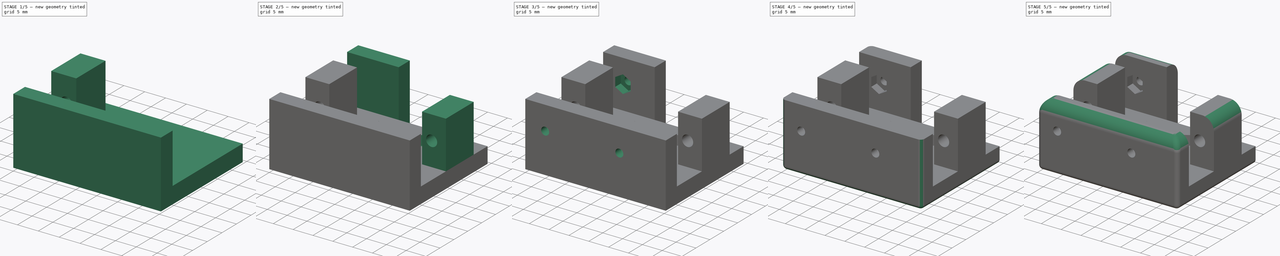
[diagram: build sequence overview — one tinted view per stage of 5, left to right]
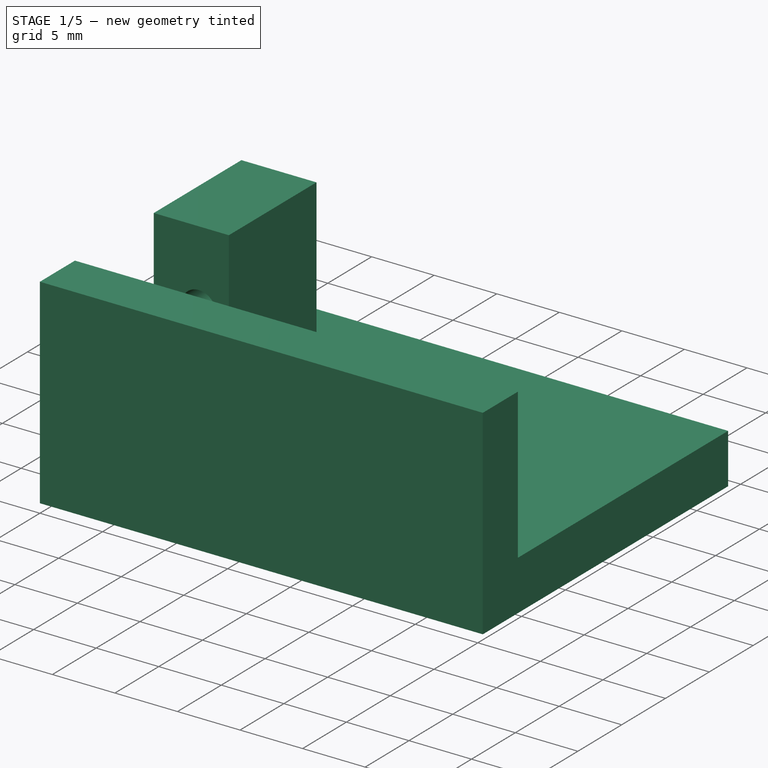
[diagram: stage 1 of 5 — iso view after this stage's code; geometry added in this stage tinted green]
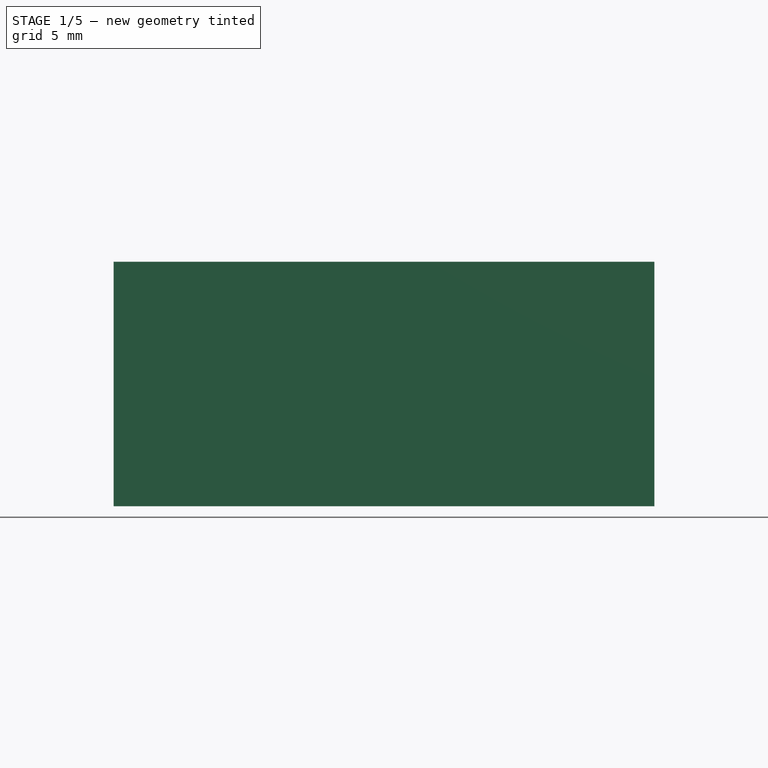
[diagram: stage 1 of 5 — front view after this stage's code; geometry added in this stage tinted green]
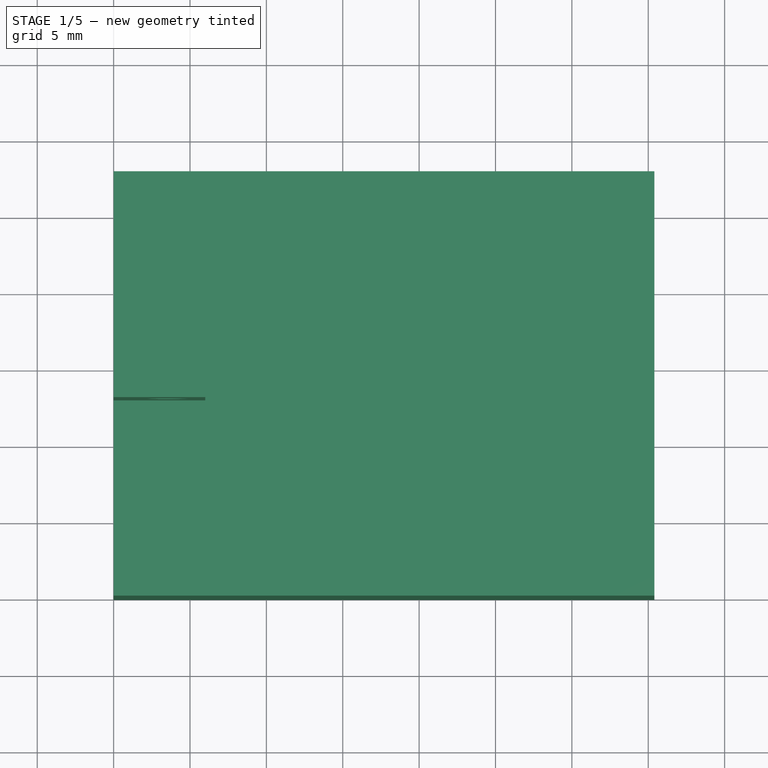
[diagram: stage 1 of 5 — top view after this stage's code; geometry added in this stage tinted green]
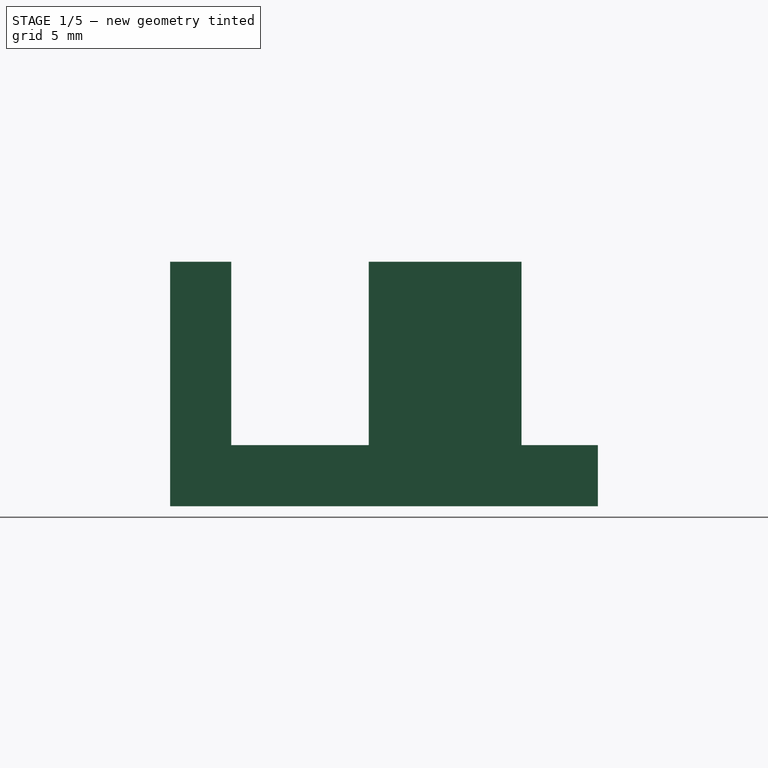
[diagram: stage 1 of 5 — right view after this stage's code; geometry added in this stage tinted green]
FCSTD DOCUMENT  (FreeCAD 0.20R29177 +426 (Git))
Label: headSmallServoHolder
License: All rights reserved
LicenseURL: http://en.wikipedia.org/wiki/All_rights_reserved
objects: Sketcher::SketchObject×13, PartDesign::Pocket×8, PartDesign::Fillet×8, PartDesign::Pad×5, Spreadsheet::Sheet×1, PartDesign::Body×1
note: 56 computed .brp shape members not serialized (recipe doc carries the construction recipe); baked Part::Feature solids carry a one-line shape summary decoded from their .brp

FEATURE [Spreadsheet::Sheet] Spreadsheet
  cells = A1=tolerance; B1(tolerance)=0.2; A2=thickness; B2(thickness)=4; A3=servo_outer_x; B3(servo_x)=35.4; A4=servo_inner_x; B4(servo_inner_x)=40.2; A5=servo_y; B5(servo_y)=24; D5=sketch 41,5 real 38,0; A6=servo_z; B6(servo_z)=12; A7=foothold_y_len; B7(foothold_y_len)=10; A8=foothold_y_pos; B8(foothold_y_pos)=23; D8=sketch 27.8 real 25,1; A9=foothold_z_len; B9(foothold_z_len)==B6 + B2; C9=c; A10=foothold_x_len; B10(foothold_x_len)=6; C10=c; A11=upper_hole_z_pos; B11(upper_hole_z_pos)==15 + B2; C11=c; A12=lower_hole_z_pos; B12(lower_hole_z_pos)==6 + B2; C12=c; A13=hole_x_pos; B13(hole_x_pos)=2.4; A14=hole_diameter; B14(hole_diameter)=2.8; A15=axis_x_pos; B15(axis_x_pos)=37.25; A16=axis_z_pos; B16(axis_z_pos)==10 + B2; A17=axis_y_pos; B17(axis_y_pos)=0; A18=axis_diameter; B18(axis_diameter)=5.9; A19=axis_length; B19(axis_length)=5; A20=plate_y_dim; B20(plate_y_dim)==B5 + B2; C20=c
FEATURE [Sketcher::SketchObject] Sketch
  FullyConstrained = true
  MapMode = 5
  Support = -> [XY_Plane]
  expr: Constraints[10] = Spreadsheet.servo_y
  expr: Constraints[11] = Spreadsheet.thickness
  expr: Constraints[9] = Spreadsheet.servo_x
  sketch-geometry (4):
    g0: LineSegment StartX=0 StartY=28 StartZ=0 EndX=35.4 EndY=28 EndZ=0
    g1: LineSegment StartX=35.4 StartY=28 StartZ=0 EndX=35.4 EndY=4 EndZ=0
    g2: LineSegment StartX=35.4 StartY=4 StartZ=0 EndX=0 EndY=4 EndZ=0
    g3: LineSegment StartX=0 StartY=4 StartZ=0 EndX=0 EndY=28 EndZ=0
  constraints (12):
    c: Coincident(g0,g1)
    c: Coincident(g1,g2)
    c: Coincident(g2,g3)
    c: Coincident(g3,g0)
    c: Horizontal(g0)
    c: Horizontal(g2)
    c: Vertical(g1)
    c: Vertical(g3)
    c: PointOnObject(g0,g-2)
    c: DistanceX(g2,g2) = 35.4
    c: DistanceY(g3,g3) = 24
    c: DistanceY(g-1,g2) = 4
FEATURE [PartDesign::Pad] Pad  label="plate"
  Direction = (0,0,1)
  Length = 4
  Length2 = 10
  Profile = -> Sketch
  ReferenceAxis = -> Sketch [N_Axis]
  Type = 0
  expr: Length = Spreadsheet.thickness
FEATURE [Sketcher::SketchObject] Sketch001
  ExternalGeometry = -> [Pad]
  FullyConstrained = true
  MapMode = 5
  Support = -> [XY_Plane]
  expr: Constraints[7] = 4
  sketch-geometry (4):
    g0: LineSegment StartX=0 StartY=0 StartZ=0 EndX=35.4 EndY=0 EndZ=0
    g1: LineSegment StartX=35.4 StartY=0 StartZ=0 EndX=35.4 EndY=4 EndZ=0
    g2: LineSegment StartX=35.4 StartY=4 StartZ=0 EndX=0 EndY=4 EndZ=0
    g3: LineSegment StartX=0 StartY=4 StartZ=0 EndX=0 EndY=0 EndZ=0
  constraints (10):
    c: Coincident(g0,g1)
    c: Coincident(g1,g2)
    c: Coincident(g2,g3)
    c: Coincident(g3,g0)
    c: Horizontal(g0)
    c: Vertical(g1)
    c: Vertical(g3)
    c: DistanceY(g1,g1) = 4
    c: Coincident(g1,g-3)
    c: Coincident(g2,g-3)
FEATURE [PartDesign::Pad] Pad001  label="back"
  BaseFeature = -> Pad
  Direction = (0,0,1)
  Length = 16
  Length2 = 10
  Profile = -> Sketch001
  ReferenceAxis = -> Sketch001 [N_Axis]
  Type = 0
  expr: Length = Spreadsheet.servo_z + Spreadsheet.thickness
FEATURE [Sketcher::SketchObject] Sketch003
  FullyConstrained = true
  MapMode = 5
  Support = -> [XY_Plane]
  expr: Constraints[10] = Spreadsheet.foothold_y_len
  expr: Constraints[11] = Spreadsheet.foothold_x_len
  expr: Constraints[9] = Spreadsheet.foothold_y_pos
  sketch-geometry (4):
    g0: LineSegment StartX=0 StartY=23 StartZ=0 EndX=6 EndY=23 EndZ=0
    g1: LineSegment StartX=6 StartY=23 StartZ=0 EndX=6 EndY=13 EndZ=0
    g2: LineSegment StartX=6 StartY=13 StartZ=0 EndX=0 EndY=13 EndZ=0
    g3: LineSegment StartX=0 StartY=13 StartZ=0 EndX=0 EndY=23 EndZ=0
  constraints (12):
    c: Coincident(g0,g1)
    c: Coincident(g1,g2)
    c: Coincident(g2,g3)
    c: Coincident(g3,g0)
    c: Horizontal(g0)
    c: Horizontal(g2)
    c: Vertical(g1)
    c: Vertical(g3)
    c: PointOnObject(g0,g-2)
    c: DistanceY(g-1,g0) = 23
    c: DistanceY(g2,g0) = 10
    c: DistanceX(g2,g1) = 6
FEATURE [PartDesign::Pad] Pad003  label="foothold_left"
  BaseFeature = -> Pad001
  Direction = (0,0,1)
  Length = 16
  Length2 = 10
  Profile = -> Sketch003
  ReferenceAxis = -> Sketch003 [N_Axis]
  Type = 0
  expr: Length = Spreadsheet.foothold_z_len
FEATURE [Sketcher::SketchObject] Sketch004
  ExternalGeometry = -> [Pad003]
  FullyConstrained = true
  MapMode = 5
  Placement = pos=(0,23,0) rot=(0,0.707107,0.707107;3.14159rad)
  Support = -> [Pad003]
  expr: Constraints[0] = Spreadsheet.lower_hole_z_pos
  expr: Constraints[1] = Spreadsheet.hole_diameter
  expr: Constraints[2] = Spreadsheet.hole_x_pos
  sketch-geometry (1):
    g0: Circle CenterX=-3.6 CenterY=10 CenterZ=0 NormalX=0 NormalY=0 NormalZ=1 AngleXU=0 Radius=1.4
  constraints (3):
    c: DistanceY(g-1,g0) = 10
    c: Diameter(g0) = 2.8
    c: DistanceX(g-3,g0) = 2.4
FEATURE [PartDesign::Pocket] Pocket  label="foothold_left_holes"
  BaseFeature = -> Pad003
  Direction = (0,-1,2e-16)
  Length = 10
  Length2 = 5
  Profile = -> Sketch004
  ReferenceAxis = -> Sketch004 [N_Axis]
  Type = 0
  expr: Length = Spreadsheet.foothold_y_len
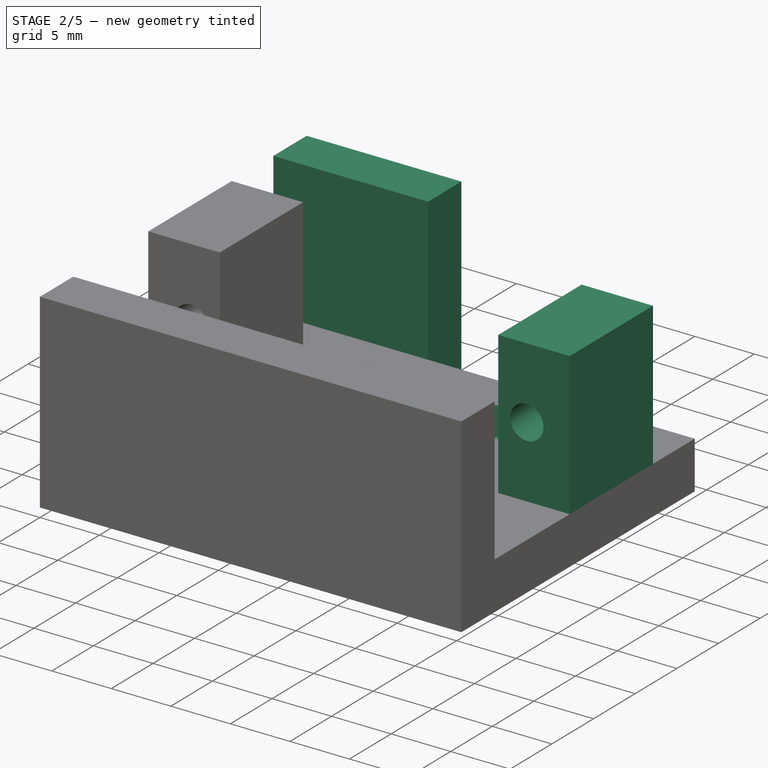
[diagram: stage 2 of 5 — iso view after this stage's code; geometry added in this stage tinted green]
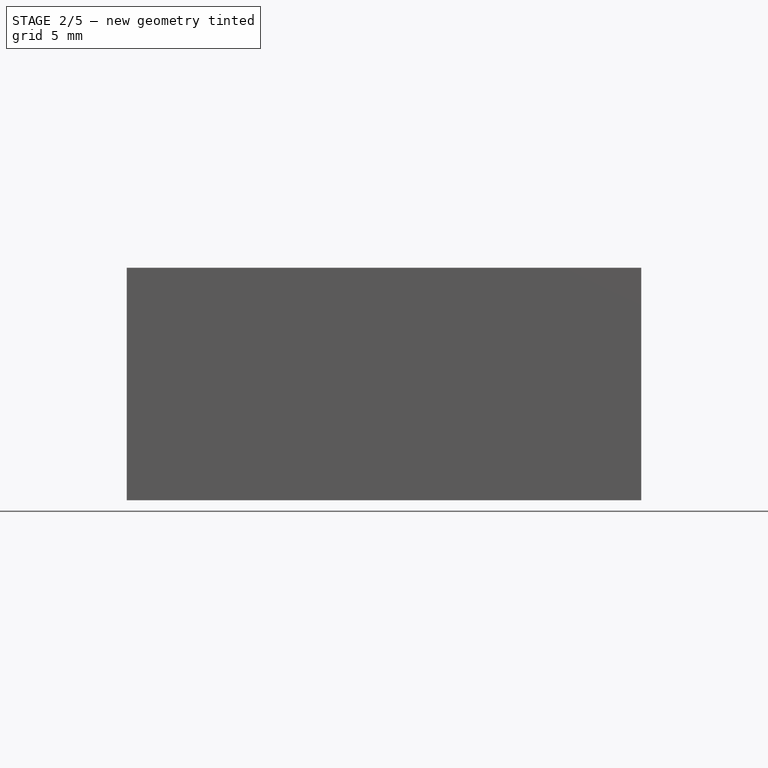
[diagram: stage 2 of 5 — front view after this stage's code; geometry added in this stage tinted green]
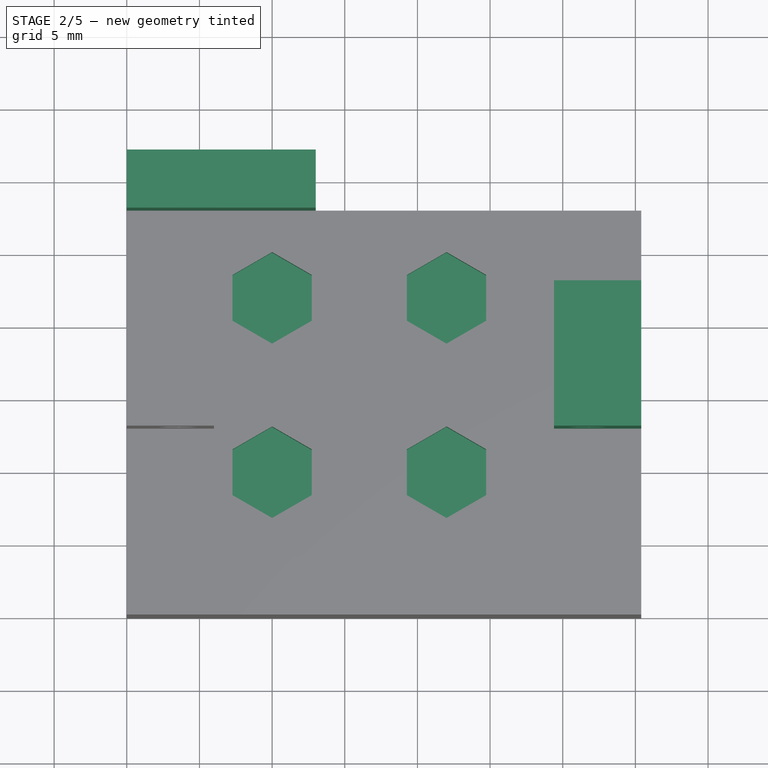
[diagram: stage 2 of 5 — top view after this stage's code; geometry added in this stage tinted green]
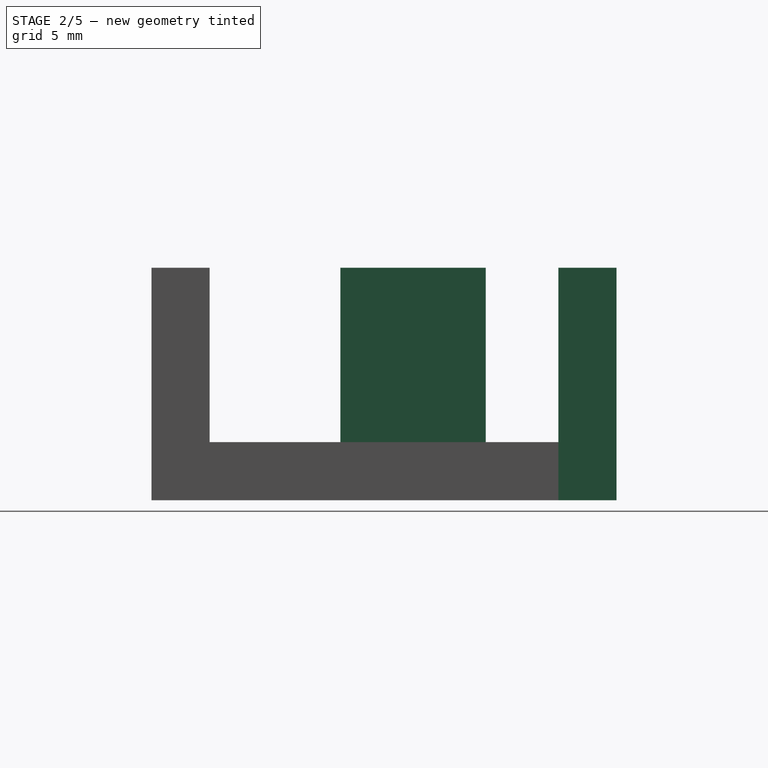
[diagram: stage 2 of 5 — right view after this stage's code; geometry added in this stage tinted green]
FEATURE [Sketcher::SketchObject] Sketch005
  ExternalGeometry = -> [Pocket]
  FullyConstrained = true
  MapMode = 5
  Support = -> [XY_Plane]
  expr: Constraints[10] = Spreadsheet.foothold_y_pos
  expr: Constraints[8] = Spreadsheet.foothold_y_len
  expr: Constraints[9] = Spreadsheet.foothold_x_len
  sketch-geometry (4):
    g0: LineSegment StartX=29.4 StartY=23 StartZ=0 EndX=35.4 EndY=23 EndZ=0
    g1: LineSegment StartX=35.4 StartY=23 StartZ=0 EndX=35.4 EndY=13 EndZ=0
    g2: LineSegment StartX=35.4 StartY=13 StartZ=0 EndX=29.4 EndY=13 EndZ=0
    g3: LineSegment StartX=29.4 StartY=13 StartZ=0 EndX=29.4 EndY=23 EndZ=0
  constraints (12):
    c: Coincident(g0,g1)
    c: Coincident(g1,g2)
    c: Coincident(g2,g3)
    c: Coincident(g3,g0)
    c: Horizontal(g0)
    c: Horizontal(g2)
    c: Vertical(g1)
    c: Vertical(g3)
    c: DistanceY(g1,g0) = 10
    c: DistanceX(g0,g0) = 6
    c: DistanceY(g-1,g0) = 23
    c: Vertical(g1,g-4)
FEATURE [PartDesign::Pad] Pad004  label="foothold_right"
  BaseFeature = -> Pocket
  Direction = (0,0,1)
  Length = 16
  Length2 = 10
  Profile = -> Sketch005
  ReferenceAxis = -> Sketch005 [N_Axis]
  Type = 0
  expr: Length = Spreadsheet.foothold_z_len
FEATURE [Sketcher::SketchObject] Sketch006
  ExternalGeometry = -> [Pad004]
  FullyConstrained = true
  MapMode = 5
  Placement = pos=(0,23,0) rot=(0,0.707107,0.707107;3.14159rad)
  Support = -> [Pad004]
  expr: Constraints[0] = Spreadsheet.lower_hole_z_pos
  expr: Constraints[1] = Spreadsheet.hole_diameter
  expr: Constraints[2] = Spreadsheet.hole_x_pos
  sketch-geometry (1):
    g0: Circle CenterX=-31.8 CenterY=10 CenterZ=0 NormalX=0 NormalY=0 NormalZ=1 AngleXU=0 Radius=1.4
  constraints (3):
    c: DistanceY(g-3,g0) = 10
    c: Diameter(g0) = 2.8
    c: DistanceX(g0,g-5) = 2.4
FEATURE [PartDesign::Pocket] Pocket001  label="footfold_right_holes"
  BaseFeature = -> Pad004
  Direction = (0,-1,2e-16)
  Length = 10
  Length2 = 5
  Profile = -> Sketch006
  ReferenceAxis = -> Sketch006 [N_Axis]
  Type = 0
  expr: Length = Spreadsheet.foothold_y_len
FEATURE [Sketcher::SketchObject] Sketch007
  ExternalGeometry = -> [Pocket001]
  FullyConstrained = true
  MapMode = 5
  Placement = pos=(0,0,0) rot=(1,0,0;3.14159rad)
  Support = -> [Pocket001]
  expr: Constraints[8] = 4
  expr: Constraints[9] = 13
  sketch-geometry (4):
    g0: LineSegment StartX=0 StartY=-28 StartZ=0 EndX=13 EndY=-28 EndZ=0
    g1: LineSegment StartX=13 StartY=-28 StartZ=0 EndX=13 EndY=-32 EndZ=0
    g2: LineSegment StartX=13 StartY=-32 StartZ=0 EndX=0 EndY=-32 EndZ=0
    g3: LineSegment StartX=0 StartY=-32 StartZ=0 EndX=0 EndY=-28 EndZ=0
  constraints (11):
    c: Coincident(g0,g1)
    c: Coincident(g1,g2)
    c: Coincident(g2,g3)
    c: Coincident(g3,g0)
    c: Horizontal(g2)
    c: Vertical(g1)
    c: Vertical(g3)
    c: Coincident(g0,g-4)
    c: DistanceY(g1,g1) = 4
    c: DistanceX(g2,g2) = 13
    c: Horizontal(g-5,g0)
FEATURE [PartDesign::Pad] Pad005  label="front"
  BaseFeature = -> Pocket001
  Direction = (0,0,-1)
  Length = 16
  Length2 = 10
  Profile = -> Sketch007
  ReferenceAxis = -> Sketch007 [N_Axis]
  Reversed = true
  Type = 0
  expr: Length = Spreadsheet.servo_z + Spreadsheet.thickness
FEATURE [Sketcher::SketchObject] Sketch008
  ExternalGeometry = -> [Pad005]
  FullyConstrained = true
  MapMode = 5
  Placement = pos=(0,0,4) rot=(0,0,1;0rad)
  Support = -> [Pad005]
  sketch-geometry (30):
    g0: LineSegment StartX=12.728 StartY=20.425 StartZ=0 EndX=12.728 EndY=23.575 EndZ=0
    g1: LineSegment StartX=12.728 StartY=23.575 StartZ=0 EndX=10 EndY=25.15 EndZ=0
    g2: LineSegment StartX=10 StartY=25.15 StartZ=0 EndX=7.27202 EndY=23.575 EndZ=0
    g3: LineSegment StartX=7.27202 StartY=23.575 StartZ=0 EndX=7.27202 EndY=20.425 EndZ=0
    g4: LineSegment StartX=7.27202 StartY=20.425 StartZ=0 EndX=10 EndY=18.85 EndZ=0
    g5: LineSegment StartX=10 StartY=18.85 StartZ=0 EndX=12.728 EndY=20.425 EndZ=0
    g6: Circle CenterX=10 CenterY=22 CenterZ=0 NormalX=0 NormalY=0 NormalZ=1 AngleXU=0 Radius=3.15
    g7: LineSegment StartX=24.728 StartY=20.425 StartZ=0 EndX=24.728 EndY=23.575 EndZ=0
    g8: LineSegment StartX=24.728 StartY=23.575 StartZ=0 EndX=22 EndY=25.15 EndZ=0
    g9: LineSegment StartX=22 StartY=25.15 StartZ=0 EndX=19.272 EndY=23.575 EndZ=0
    g10: LineSegment StartX=19.272 StartY=23.575 StartZ=0 EndX=19.272 EndY=20.425 EndZ=0
    g11: LineSegment StartX=19.272 StartY=20.425 StartZ=0 EndX=22 EndY=18.85 EndZ=0
    g12: LineSegment StartX=22 StartY=18.85 StartZ=0 EndX=24.728 EndY=20.425 EndZ=0
    g13: Circle CenterX=22 CenterY=22 CenterZ=0 NormalX=0 NormalY=0 NormalZ=1 AngleXU=0 Radius=3.15
    g14: LineSegment StartX=12.728 StartY=11.575 StartZ=0 EndX=10 EndY=13.15 EndZ=0
    g15: LineSegment StartX=10 StartY=13.15 StartZ=0 EndX=7.27202 EndY=11.575 EndZ=0
    g16: LineSegment StartX=7.27202 StartY=11.575 StartZ=0 EndX=7.27202 EndY=8.425 EndZ=0
    g17: LineSegment StartX=7.27202 StartY=8.425 StartZ=0 EndX=10 EndY=6.85 EndZ=0
    g18: LineSegment StartX=10 StartY=6.85 StartZ=0 EndX=12.728 EndY=8.425 EndZ=0
    g19: LineSegment StartX=12.728 StartY=8.425 StartZ=0 EndX=12.728 EndY=11.575 EndZ=0
    g20: Circle CenterX=10 CenterY=10 CenterZ=0 NormalX=0 NormalY=0 NormalZ=1 AngleXU=0 Radius=3.15
    g21: LineSegment StartX=24.728 StartY=8.425 StartZ=0 EndX=24.728 EndY=11.575 EndZ=0
    g22: LineSegment StartX=24.728 StartY=11.575 StartZ=0 EndX=22 EndY=13.15 EndZ=0
    g23: LineSegment StartX=22 StartY=13.15 StartZ=0 EndX=19.272 EndY=11.575 EndZ=0
    g24: LineSegment StartX=19.272 StartY=11.575 StartZ=0 EndX=19.272 EndY=8.425 EndZ=0
    g25: LineSegment StartX=19.272 StartY=8.425 StartZ=0 EndX=22 EndY=6.85 EndZ=0
    g26: LineSegment StartX=22 StartY=6.85 StartZ=0 EndX=24.728 EndY=8.425 EndZ=0
    g27: Circle CenterX=22 CenterY=10 CenterZ=0 NormalX=0 NormalY=0 NormalZ=1 AngleXU=0 Radius=3.15
    g28: GeomPoint X=16 Y=16 Z=0
    g29: GeomPoint X=0 Y=16 Z=0
  constraints (70):
    c: Coincident(g0,g1)
    c: Coincident(g1,g2)
    c: Coincident(g2,g3)
    c: Coincident(g3,g4)
    c: Coincident(g4,g5)
    c: Coincident(g5,g0)
    c: Equal(g0, g1-g5) x5
    c: PointOnObject(g0,g6)
    c: PointOnObject(g1,g6)
    c: PointOnObject(g2,g6)
    c: PointOnObject(g3,g6)
    c: PointOnObject(g4,g6)
    c: PointOnObject(g5,g6)
    c: Coincident(g7,g8)
    c: Coincident(g8,g9)
    c: Coincident(g9,g10)
    c: Coincident(g10,g11)
    c: Coincident(g11,g12)
    c: Coincident(g12,g7)
    c: Equal(g7, g8-g12) x5
    c: PointOnObject(g7,g13)
    c: PointOnObject(g8,g13)
    c: PointOnObject(g9,g13)
    c: PointOnObject(g10,g13)
    c: PointOnObject(g11,g13)
    c: PointOnObject(g12,g13)
    c: Coincident(g14,g15)
    c: Coincident(g15,g16)
    c: Coincident(g16,g17)
    c: Coincident(g17,g18)
    c: Coincident(g18,g19)
    c: Coincident(g19,g14)
    c: Equal(g14, g15-g19) x5
    c: PointOnObject(g14,g20)
    c: PointOnObject(g15,g20)
    c: PointOnObject(g16,g20)
    c: PointOnObject(g17,g20)
    c: PointOnObject(g18,g20)
    c: PointOnObject(g19,g20)
    c: Coincident(g21,g22)
    c: Coincident(g22,g23)
    c: Coincident(g23,g24)
    c: Coincident(g24,g25)
    c: Coincident(g25,g26)
    c: Coincident(g26,g21)
    c: Equal(g21, g22-g26) x5
    c: PointOnObject(g21,g27)
    c: PointOnObject(g22,g27)
    c: PointOnObject(g23,g27)
    c: PointOnObject(g24,g27)
    c: PointOnObject(g25,g27)
    c: PointOnObject(g26,g27)
    c: Vertical(g6,g20)
    c: Horizontal(g6,g13)
    c: Vertical(g27,g13)
    c: Horizontal(g20,g27)
    c: Symmetric(g13,g20,g28)
    c: Vertical(g14,g17)
    c: Vertical(g4,g1)
    c: Vertical(g8,g11)
    c: Vertical(g22,g25)
    c: Equal(g20,g6)
    c: Equal(g20,g13)
    c: Equal(g20,g27)
    c: Diameter(g20) = 6.3
    c: DistanceX(g6,g13) = 12
    c: DistanceY(g20,g6) = 12
    c: DistanceX(g-3,g6) = 10
    c: Symmetric(g-3,g-1,g29)
    c: Horizontal(g29,g28)
FEATURE [PartDesign::Pocket] Pocket002  label="plateInnterNutHole"
  BaseFeature = -> Pad005
  Direction = (0,0,-1)
  Length = 2.4
  Length2 = 5
  Profile = -> Sketch008
  ReferenceAxis = -> Sketch008 [N_Axis]
  Type = 0
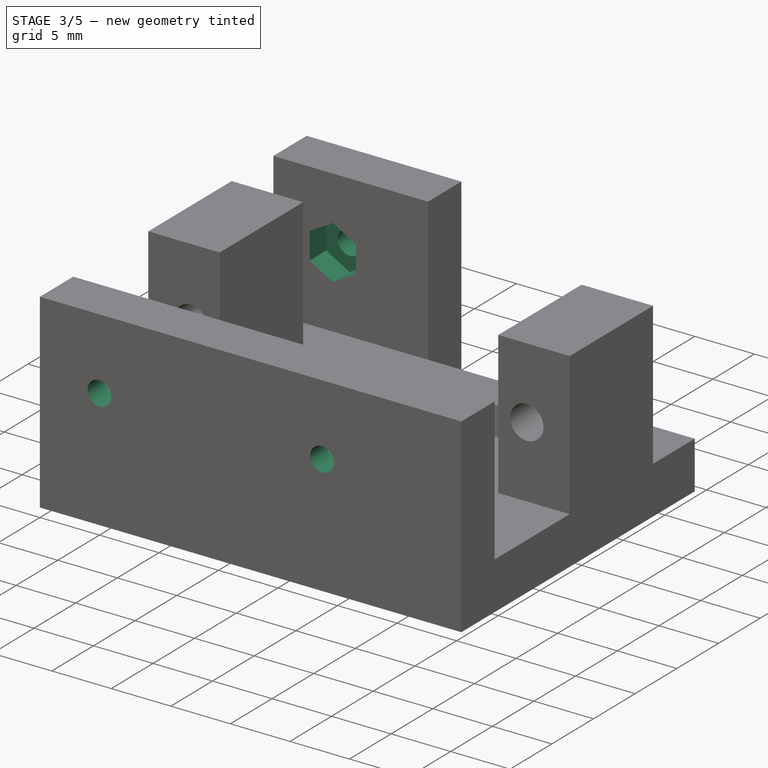
[diagram: stage 3 of 5 — iso view after this stage's code; geometry added in this stage tinted green]
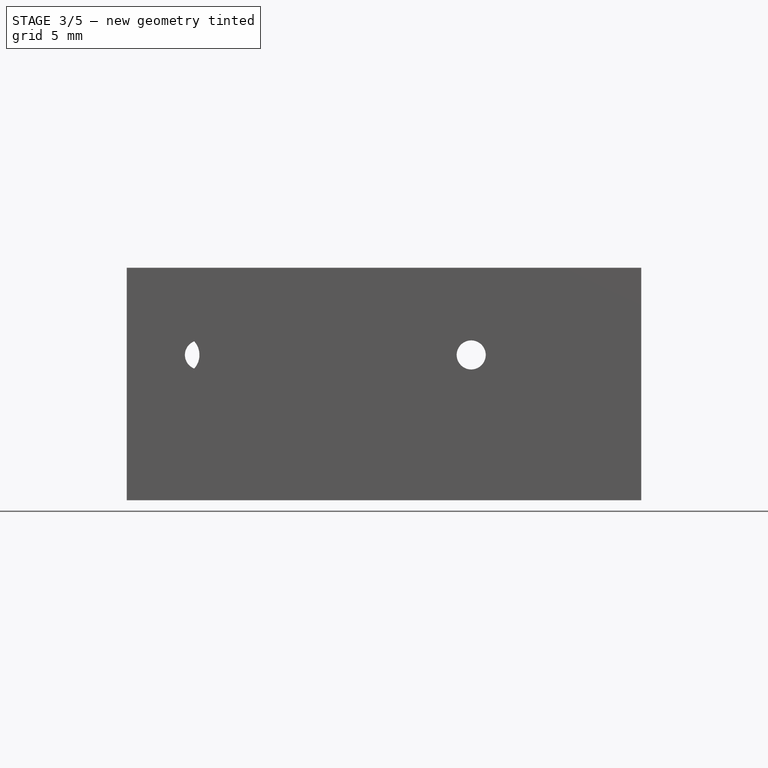
[diagram: stage 3 of 5 — front view after this stage's code; geometry added in this stage tinted green]
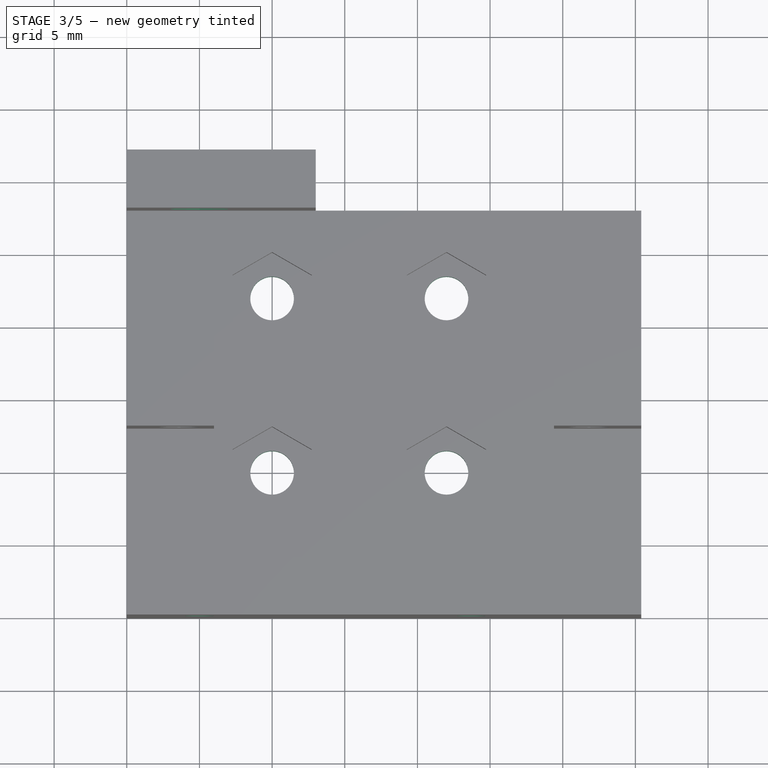
[diagram: stage 3 of 5 — top view after this stage's code; geometry added in this stage tinted green]
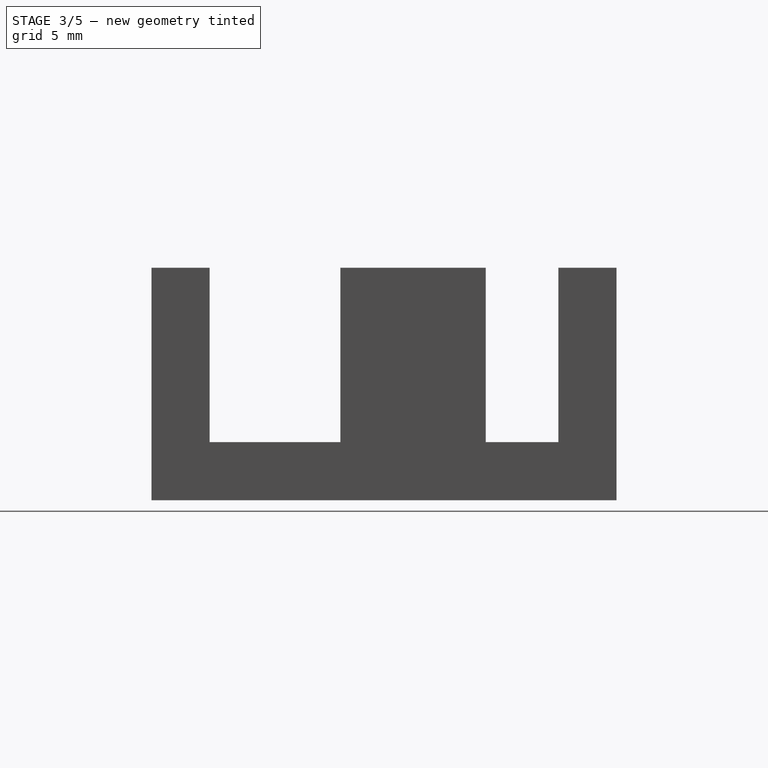
[diagram: stage 3 of 5 — right view after this stage's code; geometry added in this stage tinted green]
FEATURE [Sketcher::SketchObject] Sketch009
  ExternalGeometry = -> [Pocket002]
  FullyConstrained = true
  MapMode = 5
  Placement = pos=(0,0,0) rot=(1,0,0;3.14159rad)
  Support = -> [Pocket002]
  sketch-geometry (6):
    g0: Circle CenterX=10 CenterY=-10 CenterZ=0 NormalX=0 NormalY=0 NormalZ=1 AngleXU=0 Radius=1.5
    g1: Circle CenterX=22 CenterY=-10 CenterZ=0 NormalX=0 NormalY=0 NormalZ=1 AngleXU=0 Radius=1.5
    g2: Circle CenterX=22 CenterY=-22 CenterZ=0 NormalX=0 NormalY=0 NormalZ=1 AngleXU=0 Radius=1.5
    g3: Circle CenterX=10 CenterY=-22 CenterZ=0 NormalX=0 NormalY=0 NormalZ=1 AngleXU=0 Radius=1.5
    g4: GeomPoint X=16 Y=-16 Z=0
    g5: GeomPoint X=0 Y=-16 Z=0
  constraints (14):
    c: Horizontal(g0,g1)
    c: Vertical(g0,g3)
    c: Horizontal(g3,g2)
    c: Vertical(g2,g1)
    c: Symmetric(g0,g2,g4)
    c: DistanceY(g3,g0) = 12
    c: DistanceX(g0,g1) = 12
    c: Equal(g0,g1)
    c: Equal(g0,g3)
    c: Equal(g0,g2)
    c: Diameter(g0) = 3
    c: DistanceX(g-1,g0) = 10
    c: Symmetric(g-1,g-3,g5)
    c: Horizontal(g5,g4)
FEATURE [PartDesign::Pocket] Pocket003  label="plateOuterScrewHole"
  BaseFeature = -> Pocket002
  Direction = (0,0,1)
  Length = 5
  Length2 = 5
  Profile = -> Sketch009
  ReferenceAxis = -> Sketch009 [N_Axis]
  Type = 0
FEATURE [Sketcher::SketchObject] Sketch010
  ExternalGeometry = -> [Pocket003]
  FullyConstrained = true
  MapMode = 5
  Placement = pos=(0,4,0) rot=(0,0.707107,0.707107;3.14159rad)
  Support = -> [Pocket003]
  sketch-geometry (14):
    g0: LineSegment StartX=-3.05144 StartY=8.875 StartZ=0 EndX=-3.05144 EndY=11.125 EndZ=0
    g1: LineSegment StartX=-3.05144 StartY=11.125 StartZ=0 EndX=-5 EndY=12.25 EndZ=0
    g2: LineSegment StartX=-5 StartY=12.25 StartZ=0 EndX=-6.94856 EndY=11.125 EndZ=0
    g3: LineSegment StartX=-6.94856 StartY=11.125 StartZ=0 EndX=-6.94856 EndY=8.875 EndZ=0
    g4: LineSegment StartX=-6.94856 StartY=8.875 StartZ=0 EndX=-5 EndY=7.75 EndZ=0
    g5: LineSegment StartX=-5 StartY=7.75 StartZ=0 EndX=-3.05144 EndY=8.875 EndZ=0
    g6: Circle CenterX=-5 CenterY=10 CenterZ=0 NormalX=0 NormalY=0 NormalZ=1 AngleXU=0 Radius=2.25
    g7: LineSegment StartX=-21.7514 StartY=8.875 StartZ=0 EndX=-21.7514 EndY=11.125 EndZ=0
    g8: LineSegment StartX=-21.7514 StartY=11.125 StartZ=0 EndX=-23.7 EndY=12.25 EndZ=0
    g9: LineSegment StartX=-23.7 StartY=12.25 StartZ=0 EndX=-25.6486 EndY=11.125 EndZ=0
    g10: LineSegment StartX=-25.6486 StartY=11.125 StartZ=0 EndX=-25.6486 EndY=8.875 EndZ=0
    g11: LineSegment StartX=-25.6486 StartY=8.875 StartZ=0 EndX=-23.7 EndY=7.75 EndZ=0
    g12: LineSegment StartX=-23.7 StartY=7.75 StartZ=0 EndX=-21.7514 EndY=8.875 EndZ=0
    g13: Circle CenterX=-23.7 CenterY=10 CenterZ=0 NormalX=0 NormalY=0 NormalZ=1 AngleXU=0 Radius=2.25
  constraints (34):
    c: Coincident(g0,g1)
    c: Coincident(g1,g2)
    c: Coincident(g2,g3)
    c: Coincident(g3,g4)
    c: Coincident(g4,g5)
    c: Coincident(g5,g0)
    c: Equal(g0, g1-g5) x5
    c: PointOnObject(g0,g6)
    c: PointOnObject(g1,g6)
    c: PointOnObject(g2,g6)
    c: PointOnObject(g3,g6)
    c: PointOnObject(g4,g6)
    c: PointOnObject(g5,g6)
    c: Coincident(g7,g8)
    c: Coincident(g8,g9)
    c: Coincident(g9,g10)
    c: Coincident(g10,g11)
    c: Coincident(g11,g12)
    c: Coincident(g12,g7)
    c: Equal(g7, g8-g12) x5
    c: PointOnObject(g7,g13)
    c: PointOnObject(g8,g13)
    c: PointOnObject(g9,g13)
    c: PointOnObject(g10,g13)
    c: PointOnObject(g11,g13)
    c: PointOnObject(g12,g13)
    c: DistanceX(g-3,g13) = 11.7
    c: DistanceX(g6,g-1) = 5
    c: DistanceY(g-1,g6) = 10
    c: Horizontal(g13,g6)
    c: Equal(g13,g6)
    c: Diameter(g13) = 4.5
    c: Vertical(g8,g11)
    c: Vertical(g1,g4)
FEATURE [PartDesign::Pocket] Pocket004  label="backInnerNutHole"
  BaseFeature = -> Pocket003
  Direction = (0,-1,2e-16)
  Length = 2
  Length2 = 5
  Profile = -> Sketch010
  ReferenceAxis = -> Sketch010 [N_Axis]
  Type = 0
FEATURE [Sketcher::SketchObject] Sketch011
  ExternalGeometry = -> [Pocket004]
  FullyConstrained = true
  MapMode = 5
  Placement = pos=(0,0,0) rot=(1,0,0;1.5708rad)
  Support = -> [Pocket004]
  sketch-geometry (2):
    g0: Circle CenterX=5 CenterY=10 CenterZ=0 NormalX=0 NormalY=0 NormalZ=1 AngleXU=0 Radius=1
    g1: Circle CenterX=23.7 CenterY=10 CenterZ=0 NormalX=0 NormalY=0 NormalZ=1 AngleXU=0 Radius=1
  constraints (6):
    c: DistanceX(g1,g-3) = 11.7
    c: DistanceX(g-1,g0) = 5
    c: DistanceY(g-1,g0) = 10
    c: Horizontal(g0,g1)
    c: Equal(g0,g1)
    c: Diameter(g0) = 2
FEATURE [PartDesign::Pocket] Pocket005  label="backOuterScrewHole"
  BaseFeature = -> Pocket004
  Direction = (0,1,-2e-16)
  Length = 5
  Length2 = 5
  Profile = -> Sketch011
  ReferenceAxis = -> Sketch011 [N_Axis]
  Type = 0
FEATURE [Sketcher::SketchObject] Sketch012
  FullyConstrained = true
  MapMode = 5
  Placement = pos=(0,28,0) rot=(1,0,0;1.5708rad)
  Support = -> [Pocket005]
  sketch-geometry (7):
    g0: LineSegment StartX=6.94856 StartY=11.125 StartZ=0 EndX=5 EndY=12.25 EndZ=0
    g1: LineSegment StartX=5 StartY=12.25 StartZ=0 EndX=3.05144 EndY=11.125 EndZ=0
    g2: LineSegment StartX=3.05144 StartY=11.125 StartZ=0 EndX=3.05144 EndY=8.875 EndZ=0
    g3: LineSegment StartX=3.05144 StartY=8.875 StartZ=0 EndX=5 EndY=7.75 EndZ=0
    g4: LineSegment StartX=5 StartY=7.75 StartZ=0 EndX=6.94856 EndY=8.875 EndZ=0
    g5: LineSegment StartX=6.94856 StartY=8.875 StartZ=0 EndX=6.94856 EndY=11.125 EndZ=0
    g6: Circle CenterX=5 CenterY=10 CenterZ=0 NormalX=0 NormalY=0 NormalZ=1 AngleXU=0 Radius=2.25
  constraints (17):
    c: Coincident(g0,g1)
    c: Coincident(g1,g2)
    c: Coincident(g2,g3)
    c: Coincident(g3,g4)
    c: Coincident(g4,g5)
    c: Coincident(g5,g0)
    c: Equal(g0, g1-g5) x5
    c: PointOnObject(g0,g6)
    c: PointOnObject(g1,g6)
    c: PointOnObject(g2,g6)
    c: PointOnObject(g3,g6)
    c: PointOnObject(g4,g6)
    c: PointOnObject(g5,g6)
    c: DistanceX(g-1,g6) = 5
    c: DistanceY(g-1,g6) = 10
    c: Diameter(g6) = 4.5
    c: Vertical(g0,g3)
FEATURE [PartDesign::Pocket] Pocket006  label="frontInnerNutHole"
  BaseFeature = -> Pocket005
  Direction = (0,1,-2e-16)
  Length = 2
  Length2 = 5
  Profile = -> Sketch012
  ReferenceAxis = -> Sketch012 [N_Axis]
  Type = 0
FEATURE [Sketcher::SketchObject] Sketch013
  FullyConstrained = true
  MapMode = 5
  Placement = pos=(0,32,0) rot=(0,0.707107,0.707107;3.14159rad)
  Support = -> [Pocket006]
  sketch-geometry (1):
    g0: Circle CenterX=-5 CenterY=10 CenterZ=0 NormalX=0 NormalY=0 NormalZ=1 AngleXU=0 Radius=1
  constraints (3):
    c: DistanceX(g0,g-1) = 5
    c: DistanceY(g-1,g0) = 10
    c: Diameter(g0) = 2
FEATURE [PartDesign::Pocket] Pocket007  label="fronOuterScrewHole"
  BaseFeature = -> Pocket006
  Direction = (0,-1,2e-16)
  Length = 5
  Length2 = 5
  Profile = -> Sketch013
  ReferenceAxis = -> Sketch013 [N_Axis]
  Type = 0
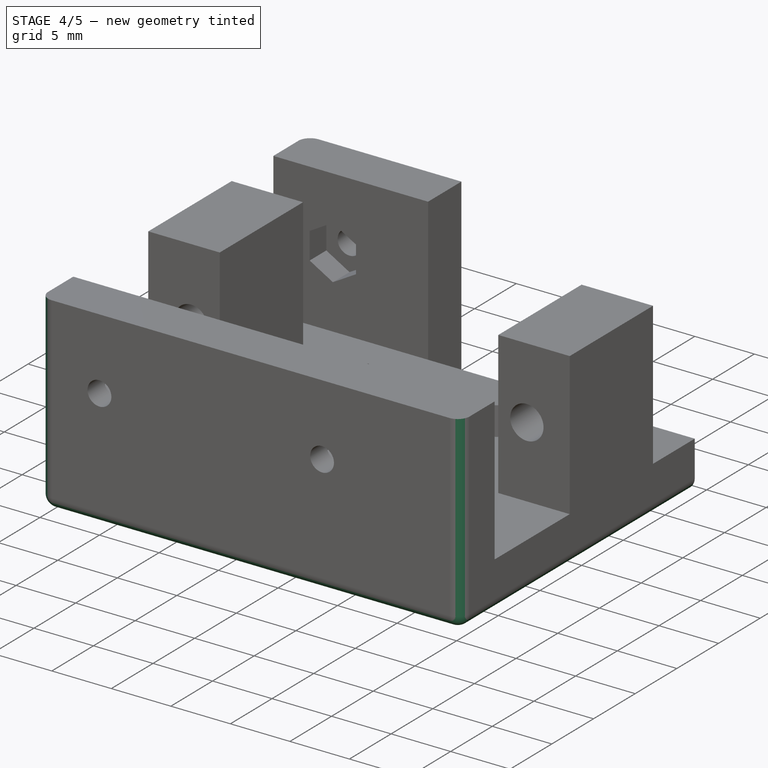
[diagram: stage 4 of 5 — iso view after this stage's code; geometry added in this stage tinted green]
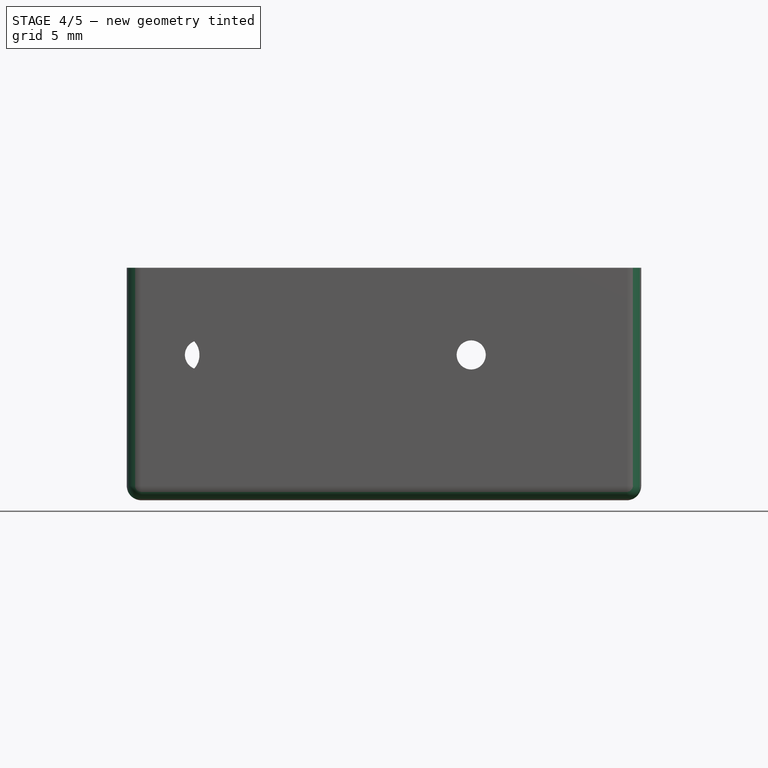
[diagram: stage 4 of 5 — front view after this stage's code; geometry added in this stage tinted green]
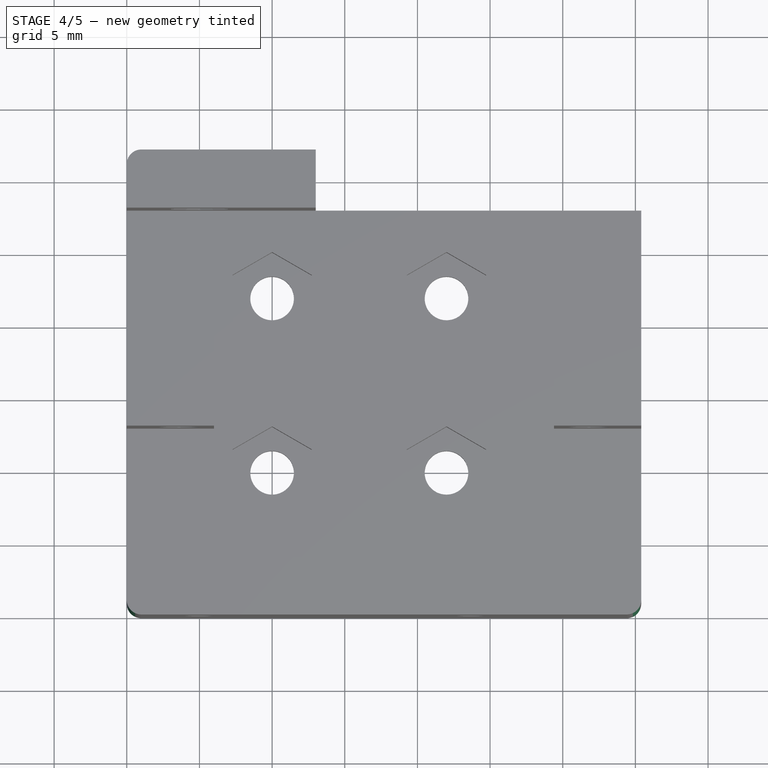
[diagram: stage 4 of 5 — top view after this stage's code; geometry added in this stage tinted green]
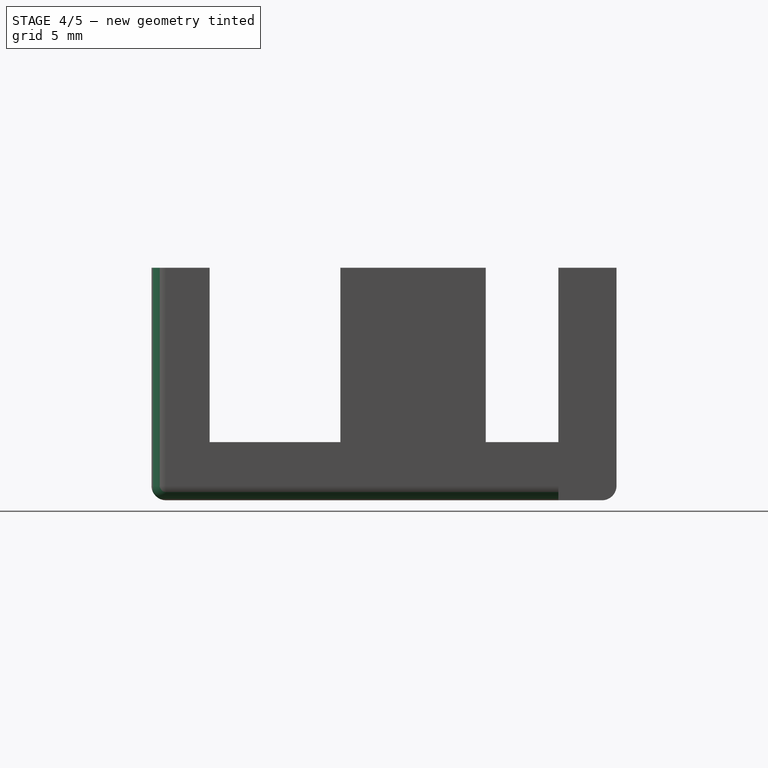
[diagram: stage 4 of 5 — right view after this stage's code; geometry added in this stage tinted green]
FEATURE [PartDesign::Fillet] Fillet
  Base = -> Pocket007 [Edge66]
  BaseFeature = -> Pocket007
  Radius = 1
  SupportTransform = false
  UseAllEdges = false
FEATURE [PartDesign::Fillet] Fillet001
  Base = -> Fillet [Edge30]
  BaseFeature = -> Fillet
  Radius = 1
  SupportTransform = false
  UseAllEdges = false
FEATURE [PartDesign::Fillet] Fillet002
  Base = -> Fillet001 [Edge35]
  BaseFeature = -> Fillet001
  Radius = 1
  SupportTransform = false
  UseAllEdges = false
FEATURE [PartDesign::Fillet] Fillet003
  Base = -> Fillet002 [Edge53]
  BaseFeature = -> Fillet002
  Radius = 1
  SupportTransform = false
  UseAllEdges = false
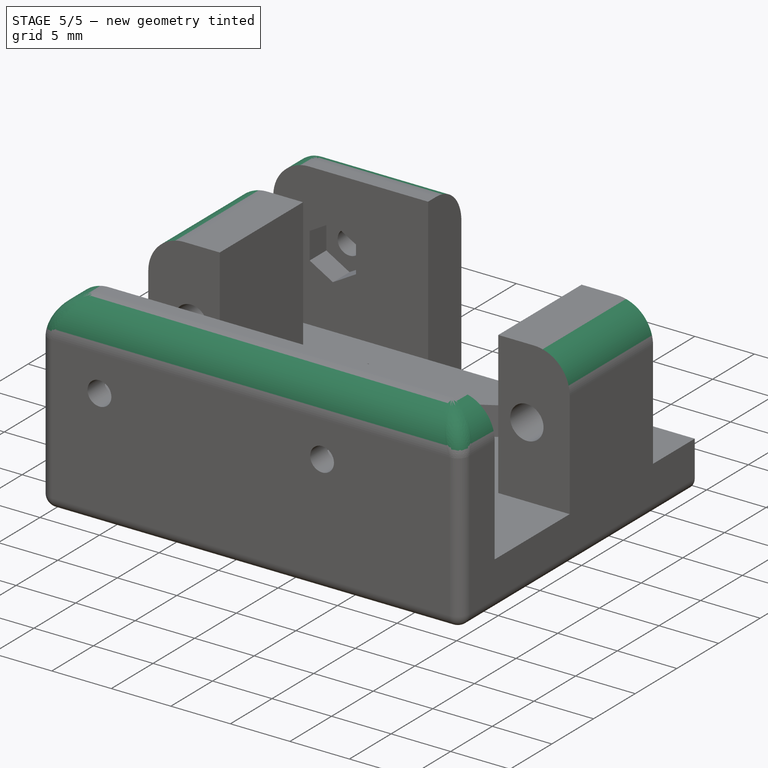
[diagram: stage 5 of 5 — iso view after this stage's code; geometry added in this stage tinted green]
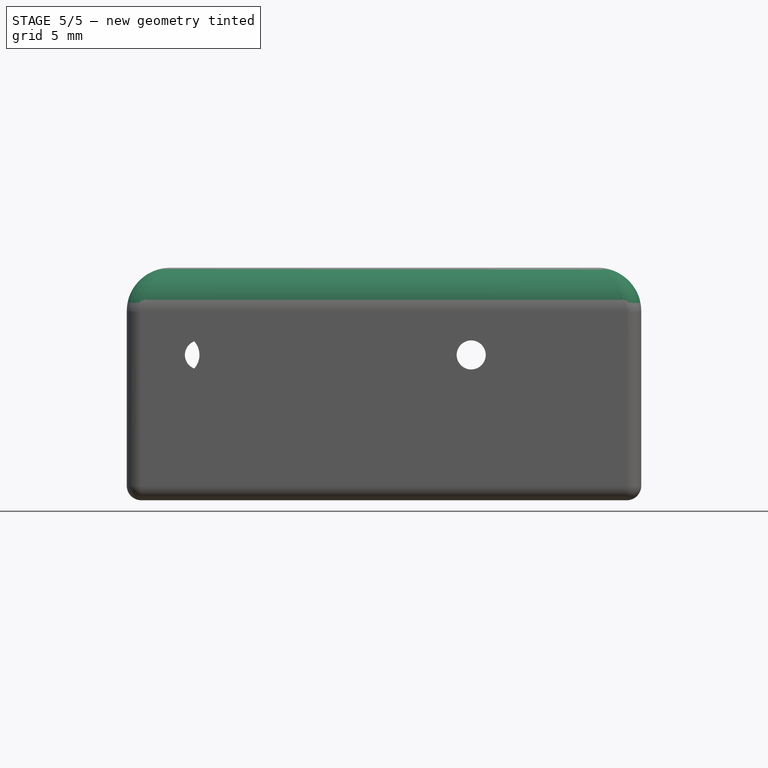
[diagram: stage 5 of 5 — front view after this stage's code; geometry added in this stage tinted green]
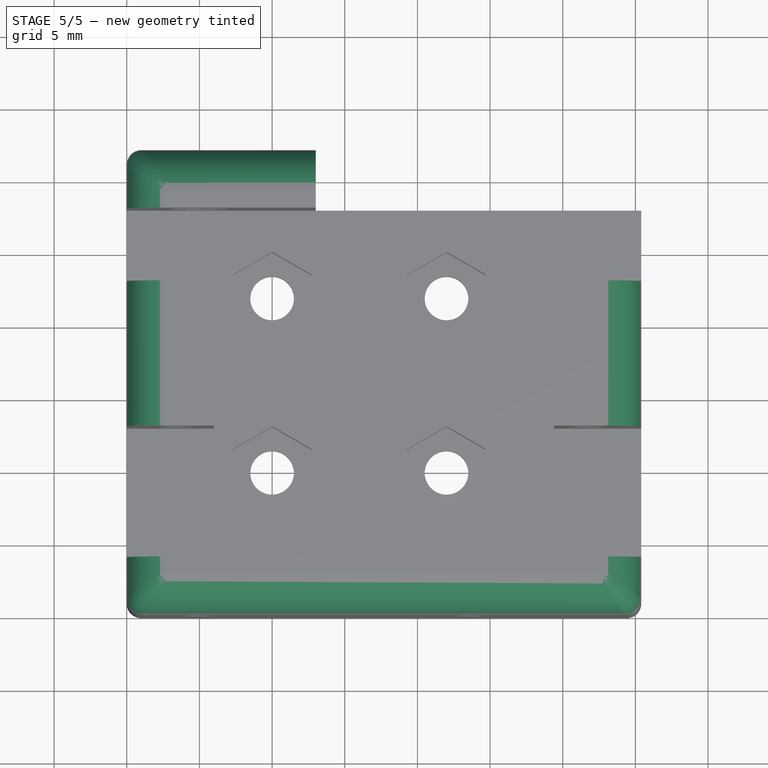
[diagram: stage 5 of 5 — top view after this stage's code; geometry added in this stage tinted green]
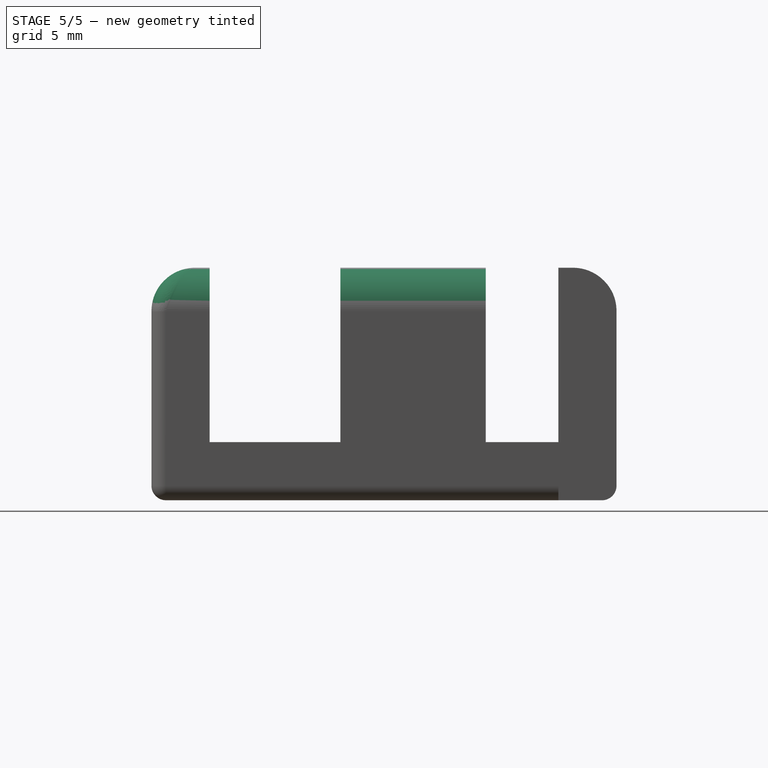
[diagram: stage 5 of 5 — right view after this stage's code; geometry added in this stage tinted green]
FEATURE [PartDesign::Fillet] Fillet004
  Base = -> Fillet003 [Edge235]
  BaseFeature = -> Fillet003
  Radius = 3
  SupportTransform = false
  UseAllEdges = false
FEATURE [PartDesign::Fillet] Fillet005
  Base = -> Fillet004 [Edge155]
  BaseFeature = -> Fillet004
  Radius = 3
  SupportTransform = false
  UseAllEdges = false
FEATURE [PartDesign::Fillet] Fillet006
  Base = -> Fillet005 [Edge215]
  BaseFeature = -> Fillet005
  Radius = 3
  SupportTransform = false
  UseAllEdges = false
FEATURE [PartDesign::Fillet] Fillet007
  Base = -> Fillet006 [Edge258]
  BaseFeature = -> Fillet006
  Radius = 3
  SupportTransform = false
  UseAllEdges = false
FEATURE [PartDesign::Body] Body
  Group = -> [Sketch,Pad,Sketch001,Pad001,Sketch003,Pad003,Sketch004,Pocket,Sketch005,Pad004,Sketch006,Pocket001,Sketch007,Pad005,Sketch008,Pocket002,Sketch009,Pocket003,Sketch010,Pocket004,Sketch011,Pocket005,Sketch012,Pocket006,Sketch013,Pocket007,Fillet,Fillet001,Fillet002,Fillet003,Fillet004,Fillet005,Fillet006,Fillet007]
  Origin = -> Origin
  Tip = -> Fillet007
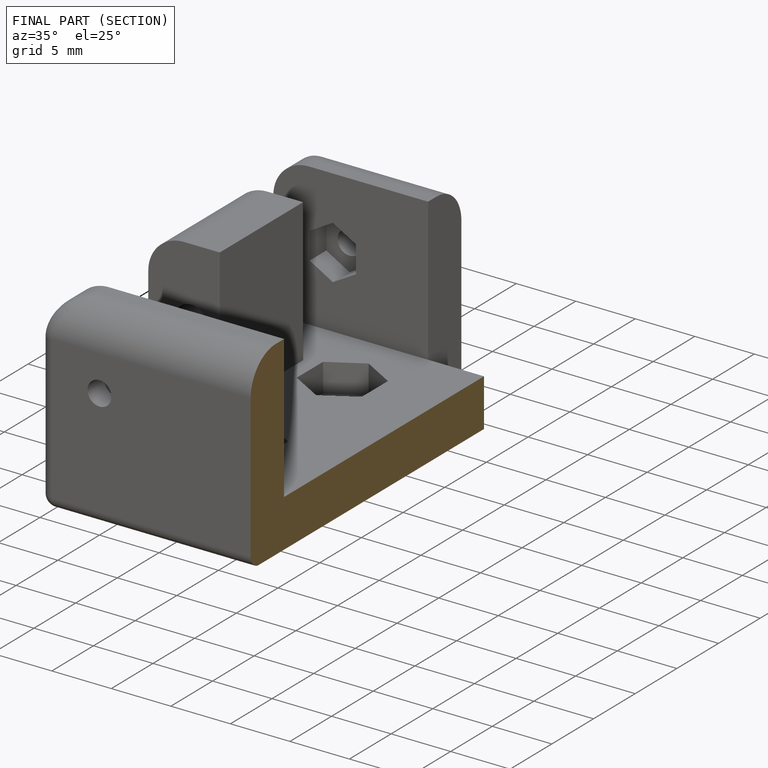
[diagram: finished part — half-section view (interior)]
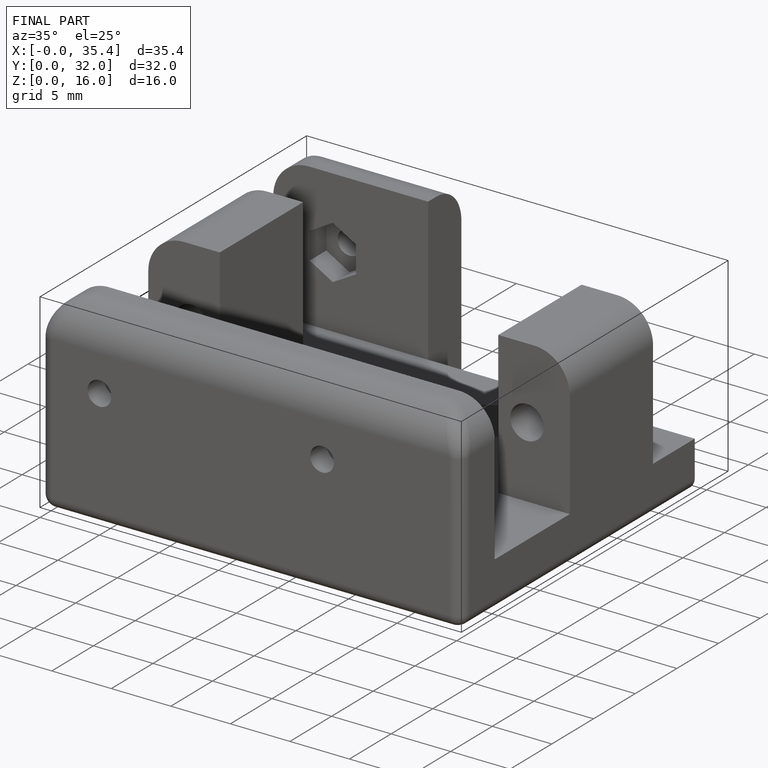
[diagram: finished part — iso view with bounding-box wireframe]
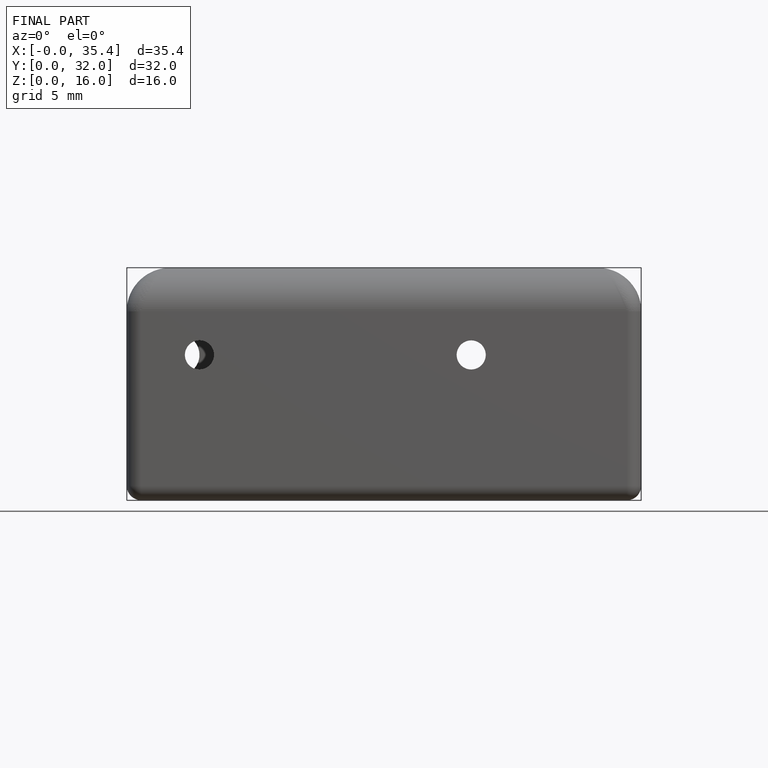
[diagram: finished part — front view with bounding-box wireframe]
